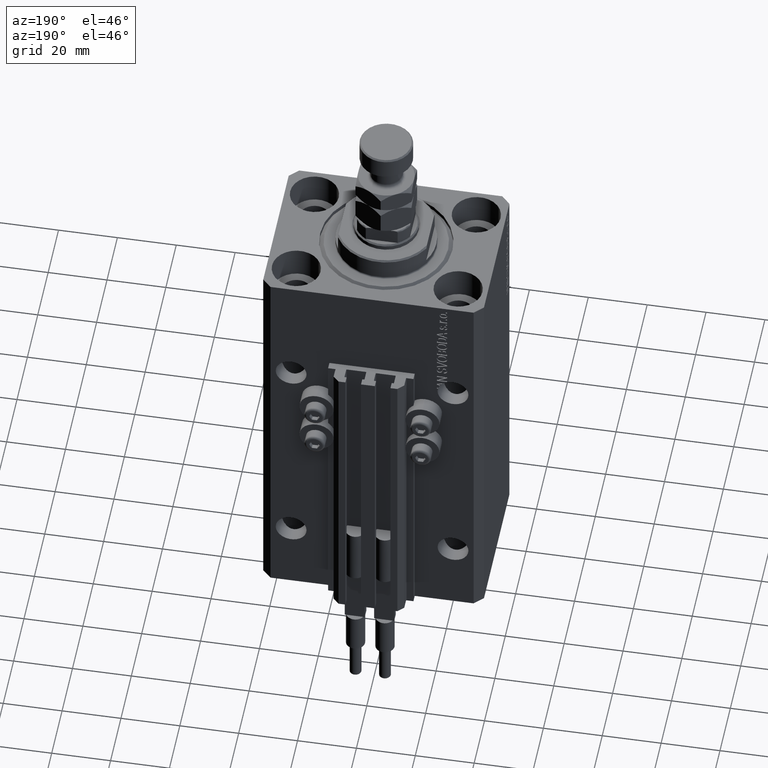
[diagram: clean part render]
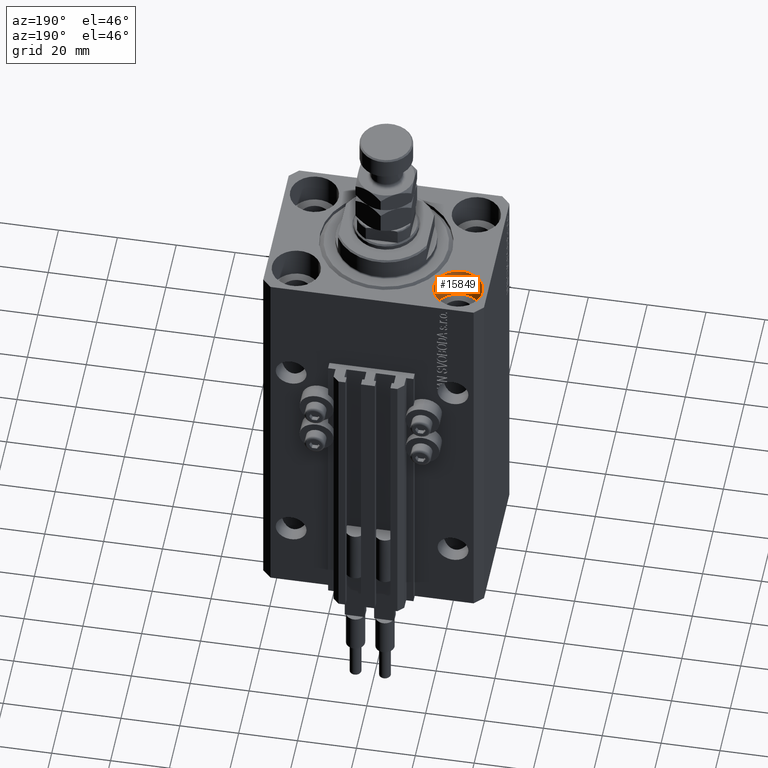
[diagram: same view with one face highlighted and labeled with its STEP entity id]
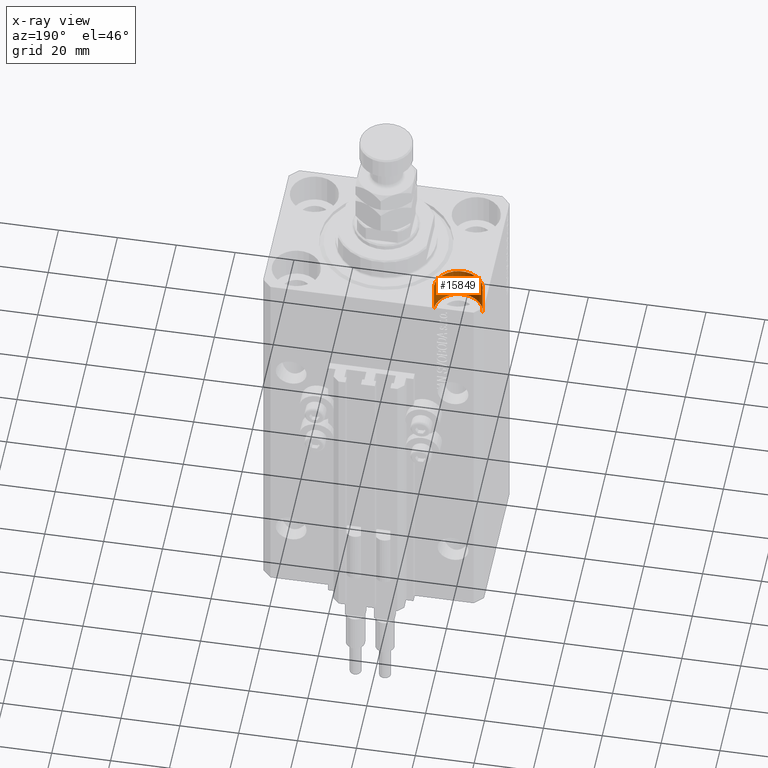
[diagram: x-ray of the same camera — body ghosted, the highlighted face saturated]
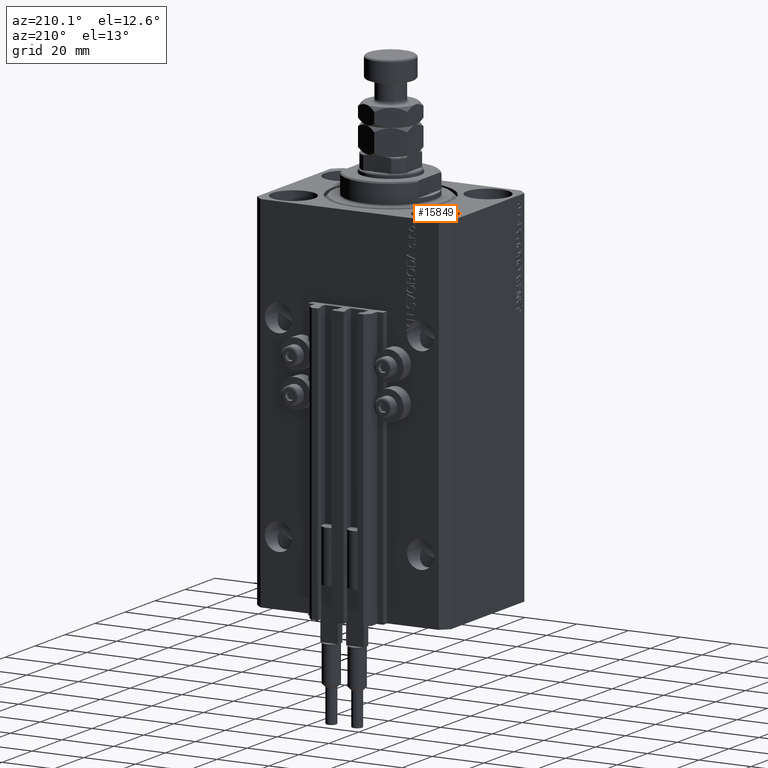
[diagram: same view with one face highlighted and labeled with its STEP entity id]
A machine part, auxiliary view. The second image highlights one B-rep face of the part: STEP entity #15849.
The next image is the same camera in x-ray: the body ghosted, the highlighted face saturated — about 0% of this face is hidden behind the body in this view.
A second angle (auxiliary view) of the same face is appended — the face is thin or edge-on in the first view.
In plain terms, the highlighted cylindrical surface (edge-blend (fillet) strip) has radius 8.25 mm, axis along (0, 0, 1).
Its self-contained STEP definition (entity closure, byte-faithful):
#111 = ORIENTED_EDGE ( 'NONE', *, *, #36686, .T. ) ;
#2017 = CIRCLE ( 'NONE', #3626, 8.250000000000000000 ) ;
#3626 = AXIS2_PLACEMENT_3D ( 'NONE', #40954, #27221, #31008 ) ;
#3707 = CARTESIAN_POINT ( 'NONE',  ( -35.75000000000000711, 17.50000000000000000, -11.00000000000000000 ) ) ;
#4426 = VECTOR ( 'NONE', #39784, 1000.000000000000000 ) ;
#6509 = VERTEX_POINT ( 'NONE', #48364 ) ;
#6663 = DIRECTION ( 'NONE',  ( -0.000000000000000000, -0.000000000000000000, 1.000000000000000000 ) ) ;
#6911 = EDGE_LOOP ( 'NONE', ( #33902, #48567, #111, #12968 ) ) ;
#7752 = DIRECTION ( 'NONE',  ( 1.000000000000000000, 0.000000000000000000, 0.000000000000000000 ) ) ;
#9005 = LINE ( 'NONE', #24379, #4426 ) ;
#9259 = CARTESIAN_POINT ( 'NONE',  ( -19.25000000000000355, 17.50000000000000000, 0.000000000000000000 ) ) ;
#10241 = FACE_OUTER_BOUND ( 'NONE', #6911, .T. ) ;
#12968 = ORIENTED_EDGE ( 'NONE', *, *, #49677, .F. ) ;
#15849 = ADVANCED_FACE ( 'NONE', ( #10241 ), #26365, .F. ) ;
#18827 = CARTESIAN_POINT ( 'NONE',  ( -19.25000000000000355, 17.50000000000000000, -11.00000000000000000 ) ) ;
#23380 = DIRECTION ( 'NONE',  ( 0.000000000000000000, 0.000000000000000000, 1.000000000000000000 ) ) ;
#24379 = CARTESIAN_POINT ( 'NONE',  ( -35.75000000000000711, 17.50000000000000000, -11.00000000000000000 ) ) ;
#26365 = CYLINDRICAL_SURFACE ( 'NONE', #39459, 8.250000000000000000 ) ;
#27221 = DIRECTION ( 'NONE',  ( 0.000000000000000000, 0.000000000000000000, 1.000000000000000000 ) ) ;
#29889 = DIRECTION ( 'NONE',  ( -0.000000000000000000, -0.000000000000000000, 1.000000000000000000 ) ) ;
#30695 = CARTESIAN_POINT ( 'NONE',  ( -27.50000000000000355, 17.50000000000000000, -11.00000000000000000 ) ) ;
#31008 = DIRECTION ( 'NONE',  ( 1.000000000000000000, 0.000000000000000000, 0.000000000000000000 ) ) ;
#33902 = ORIENTED_EDGE ( 'NONE', *, *, #36902, .F. ) ;
#36686 = EDGE_CURVE ( 'NONE', #6509, #49269, #2017, .T. ) ;
#36902 = EDGE_CURVE ( 'NONE', #40540, #39636, #42293, .T. ) ;
#36986 = DIRECTION ( 'NONE',  ( 1.000000000000000000, 0.000000000000000000, 0.000000000000000000 ) ) ;
#37120 = EDGE_CURVE ( 'NONE', #40540, #6509, #9005, .T. ) ;
#37186 = LINE ( 'NONE', #48772, #44430 ) ;
#37973 = CARTESIAN_POINT ( 'NONE',  ( -27.50000000000000355, 17.50000000000000000, -11.00000000000000000 ) ) ;
#39459 = AXIS2_PLACEMENT_3D ( 'NONE', #37973, #29889, #36986 ) ;
#39636 = VERTEX_POINT ( 'NONE', #18827 ) ;
#39784 = DIRECTION ( 'NONE',  ( -0.000000000000000000, -0.000000000000000000, 1.000000000000000000 ) ) ;
#40540 = VERTEX_POINT ( 'NONE', #3707 ) ;
#40954 = CARTESIAN_POINT ( 'NONE',  ( -27.50000000000000355, 17.50000000000000000, 0.000000000000000000 ) ) ;
#42258 = AXIS2_PLACEMENT_3D ( 'NONE', #30695, #23380, #7752 ) ;
#42293 = CIRCLE ( 'NONE', #42258, 8.250000000000000000 ) ;
#44430 = VECTOR ( 'NONE', #6663, 1000.000000000000000 ) ;
#48364 = CARTESIAN_POINT ( 'NONE',  ( -35.75000000000000711, 17.50000000000000000, 0.000000000000000000 ) ) ;
#48567 = ORIENTED_EDGE ( 'NONE', *, *, #37120, .T. ) ;
#48772 = CARTESIAN_POINT ( 'NONE',  ( -19.25000000000000355, 17.50000000000000000, -11.00000000000000000 ) ) ;
#49269 = VERTEX_POINT ( 'NONE', #9259 ) ;
#49677 = EDGE_CURVE ( 'NONE', #39636, #49269, #37186, .T. ) ;